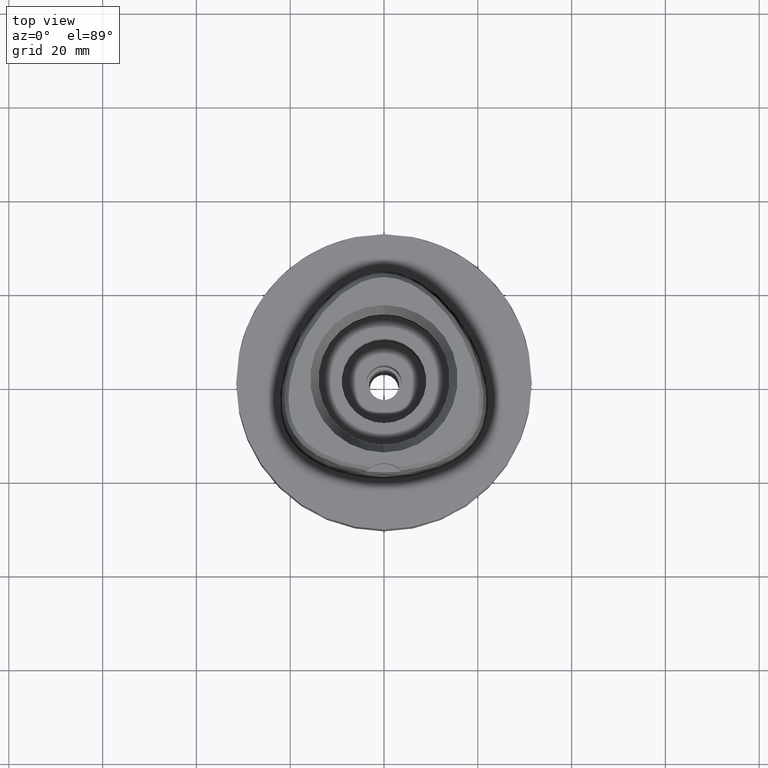
[diagram: clean part render]
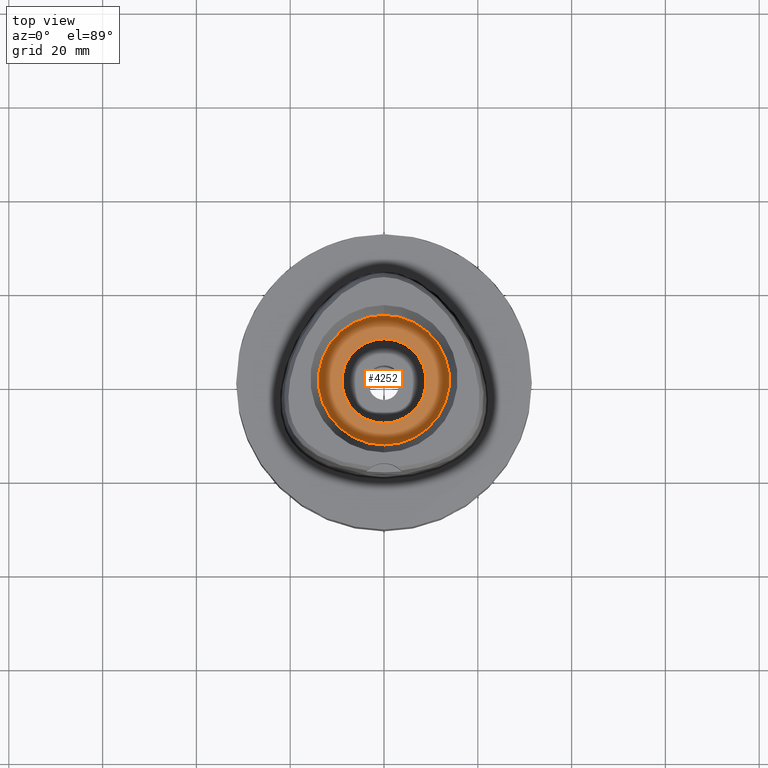
[diagram: same view with one face highlighted and labeled with its STEP entity id]
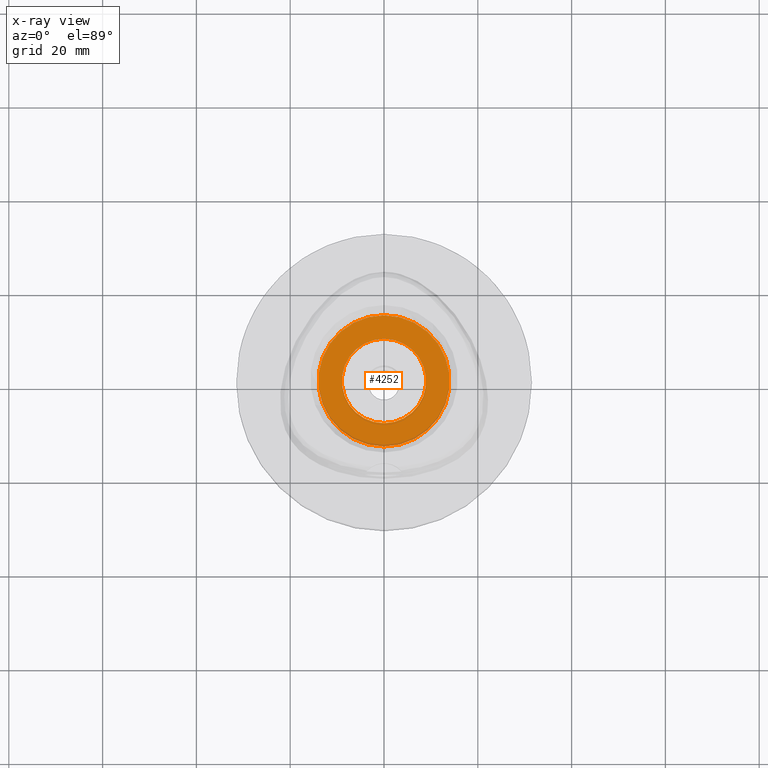
[diagram: x-ray of the same camera — body ghosted, the highlighted face saturated]
A machine part, top view. The second image highlights one B-rep face of the part: STEP entity #4252.
The next image is the same camera in x-ray: the body ghosted, the highlighted face saturated — about 3% of this face is hidden behind the body in this view.
In plain terms, the highlighted planar face has unit normal (0, 0, 1).
Its self-contained STEP definition (entity closure, byte-faithful):
#5 = CARTESIAN_POINT ( 'NONE',  ( 0.0000000000000000000, 0.0000000000000000000, 11.00000000000000000 ) ) ;
#212 = DIRECTION ( 'NONE',  ( 0.0000000000000000000, -1.000000000000000000, 0.0000000000000000000 ) ) ;
#283 = VERTEX_POINT ( 'NONE', #1607 ) ;
#556 = ORIENTED_EDGE ( 'NONE', *, *, #3145, .F. ) ;
#567 = VERTEX_POINT ( 'NONE', #1850 ) ;
#695 = DIRECTION ( 'NONE',  ( 0.0000000000000000000, 0.0000000000000000000, 1.000000000000000000 ) ) ;
#882 = AXIS2_PLACEMENT_3D ( 'NONE', #5, #3031, #1103 ) ;
#976 = CARTESIAN_POINT ( 'NONE',  ( 0.0000000000000000000, 0.0000000000000000000, 11.00000000000000000 ) ) ;
#1103 = DIRECTION ( 'NONE',  ( 0.0000000000000000000, 1.000000000000000000, 0.0000000000000000000 ) ) ;
#1117 = AXIS2_PLACEMENT_3D ( 'NONE', #976, #4801, #212 ) ;
#1263 = CARTESIAN_POINT ( 'NONE',  ( 0.0000000000000000000, 1.277306611510999858E-14, 11.00000000000000000 ) ) ;
#1476 = AXIS2_PLACEMENT_3D ( 'NONE', #2711, #695, #2314 ) ;
#1607 = CARTESIAN_POINT ( 'NONE',  ( 0.0000000000000000000, 14.00000000000000000, 11.00000000000000000 ) ) ;
#1713 = AXIS2_PLACEMENT_3D ( 'NONE', #3232, #2932, #3683 ) ;
#1772 = FACE_OUTER_BOUND ( 'NONE', #4117, .T. ) ;
#1850 = CARTESIAN_POINT ( 'NONE',  ( 0.0000000000000000000, 9.000000000000000000, 11.00000000000000000 ) ) ;
#1858 = EDGE_LOOP ( 'NONE', ( #1878, #3066 ) ) ;
#1878 = ORIENTED_EDGE ( 'NONE', *, *, #3835, .F. ) ;
#2266 = EDGE_CURVE ( 'NONE', #3597, #567, #2849, .T. ) ;
#2310 = CIRCLE ( 'NONE', #1117, 14.00000000000000000 ) ;
#2314 = DIRECTION ( 'NONE',  ( 0.0000000000000000000, 1.000000000000000000, 0.0000000000000000000 ) ) ;
#2343 = CARTESIAN_POINT ( 'NONE',  ( 0.0000000000000000000, -14.00000000000000000, 11.00000000000000000 ) ) ;
#2711 = CARTESIAN_POINT ( 'NONE',  ( 0.0000000000000000000, 1.277306611510999858E-14, 11.00000000000000000 ) ) ;
#2798 = CARTESIAN_POINT ( 'NONE',  ( 0.0000000000000000000, -9.000000000000000000, 11.00000000000000000 ) ) ;
#2849 = CIRCLE ( 'NONE', #3498, 9.000000000000000000 ) ;
#2899 = CIRCLE ( 'NONE', #1476, 9.000000000000000000 ) ;
#2932 = DIRECTION ( 'NONE',  ( 0.0000000000000000000, 0.0000000000000000000, 1.000000000000000000 ) ) ;
#2970 = EDGE_CURVE ( 'NONE', #4085, #283, #2310, .T. ) ;
#3031 = DIRECTION ( 'NONE',  ( 0.0000000000000000000, 0.0000000000000000000, -1.000000000000000000 ) ) ;
#3066 = ORIENTED_EDGE ( 'NONE', *, *, #2266, .F. ) ;
#3095 = CIRCLE ( 'NONE', #882, 14.00000000000000000 ) ;
#3145 = EDGE_CURVE ( 'NONE', #283, #4085, #3095, .T. ) ;
#3232 = CARTESIAN_POINT ( 'NONE',  ( 0.0000000000000000000, 0.0000000000000000000, 11.00000000000000000 ) ) ;
#3498 = AXIS2_PLACEMENT_3D ( 'NONE', #1263, #3552, #3529 ) ;
#3529 = DIRECTION ( 'NONE',  ( 0.0000000000000000000, -1.000000000000000000, 0.0000000000000000000 ) ) ;
#3552 = DIRECTION ( 'NONE',  ( 0.0000000000000000000, 0.0000000000000000000, 1.000000000000000000 ) ) ;
#3597 = VERTEX_POINT ( 'NONE', #2798 ) ;
#3683 = DIRECTION ( 'NONE',  ( 1.000000000000000000, 0.0000000000000000000, 0.0000000000000000000 ) ) ;
#3835 = EDGE_CURVE ( 'NONE', #567, #3597, #2899, .T. ) ;
#3906 = ORIENTED_EDGE ( 'NONE', *, *, #2970, .F. ) ;
#3978 = FACE_BOUND ( 'NONE', #1858, .T. ) ;
#4085 = VERTEX_POINT ( 'NONE', #2343 ) ;
#4117 = EDGE_LOOP ( 'NONE', ( #556, #3906 ) ) ;
#4252 = ADVANCED_FACE ( 'NONE', ( #1772, #3978 ), #4743, .T. ) ;
#4743 = PLANE ( 'NONE',  #1713 ) ;
#4801 = DIRECTION ( 'NONE',  ( 0.0000000000000000000, 0.0000000000000000000, -1.000000000000000000 ) ) ;